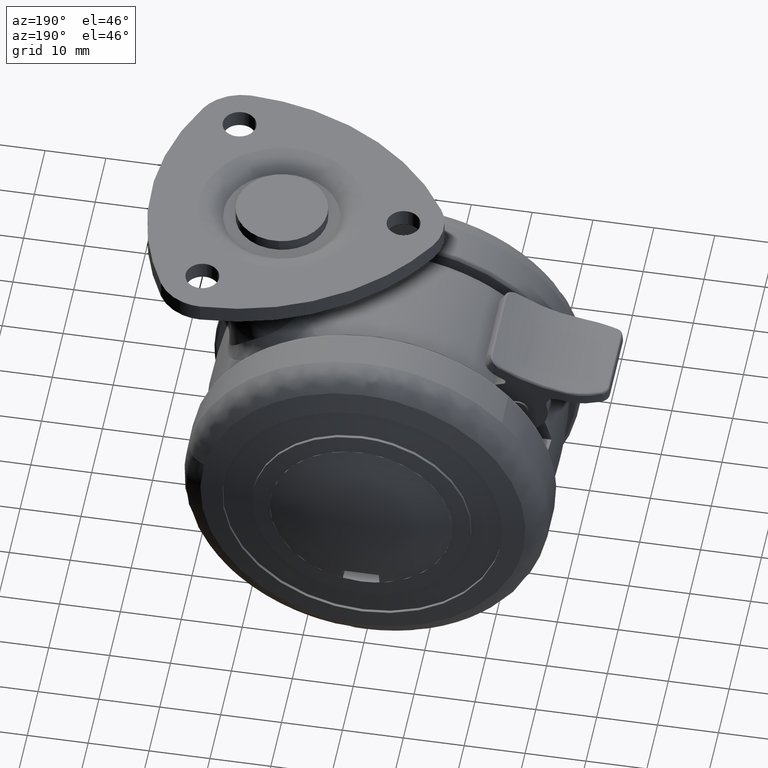
[diagram: clean part render]
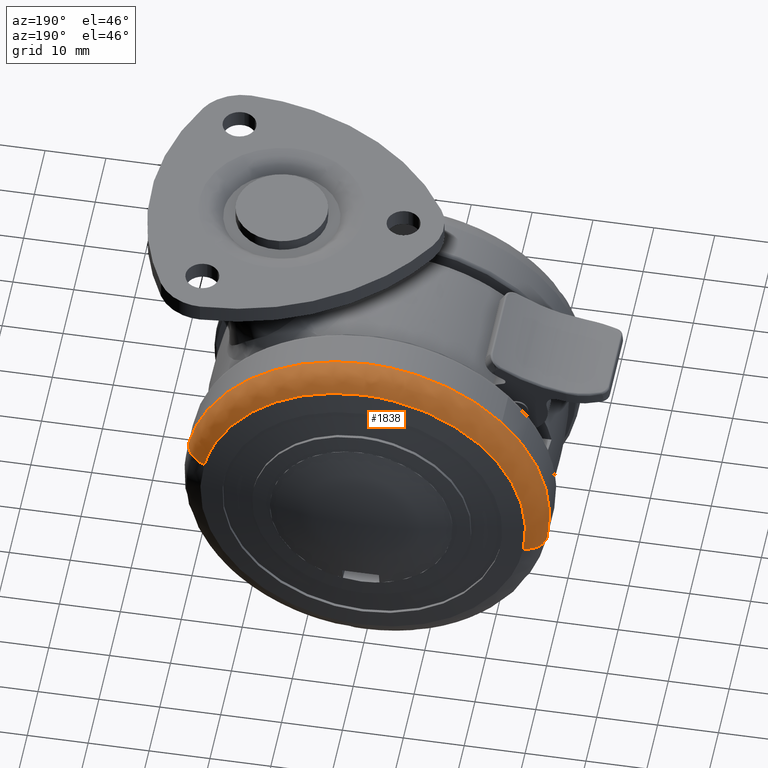
[diagram: same view with one face highlighted and labeled with its STEP entity id]
A machine part, auxiliary view. The second image highlights one B-rep face of the part: STEP entity #1838.
In plain terms, the highlighted face is a freeform B-spline surface patch.
Its self-contained STEP definition (entity closure, byte-faithful):
#794=CARTESIAN_POINT('',(29.273079754005469,16.918165000346921,6.564053756302946));
#795=VERTEX_POINT('',#794);
#813=CARTESIAN_POINT('',(0.0,16.918165000004851,30.000000000000011));
#814=VERTEX_POINT('',#813);
#815=CARTESIAN_POINT('',(0.0,16.918165000004851,30.000000000000011));
#816=CARTESIAN_POINT('',(24.017916571073211,16.918165000004851,30.000000000000004));
#817=CARTESIAN_POINT('',(29.273079754005469,16.918165000346914,6.564053756302946));
#825=(BOUNDED_CURVE()B_SPLINE_CURVE(2,(#815,#816,#817),.UNSPECIFIED.,.F.,.U.)B_SPLINE_CURVE_WITH_KNOTS((3,3),(0.0,0.212563823276733),.UNSPECIFIED.)CURVE()GEOMETRIC_REPRESENTATION_ITEM()RATIONAL_B_SPLINE_CURVE((1.0,0.750965990388735,0.925416950448711))REPRESENTATION_ITEM(''));
#826=EDGE_CURVE('',#814,#795,#825,.T.);
#828=CARTESIAN_POINT('',(-22.118320296662549,16.918165000004858,20.267706018546981));
#829=VERTEX_POINT('',#828);
#830=CARTESIAN_POINT('',(-22.118320296662549,16.918165000004862,20.267706018546978));
#831=CARTESIAN_POINT('',(-13.200316266607871,16.918165000004844,30.000000000000011));
#832=CARTESIAN_POINT('',(0.0,16.918165000004851,30.000000000000011));
#840=(BOUNDED_CURVE()B_SPLINE_CURVE(2,(#830,#831,#832),.UNSPECIFIED.,.F.,.U.)B_SPLINE_CURVE_WITH_KNOTS((3,3),(0.868415206218575,1.0),.UNSPECIFIED.)CURVE()GEOMETRIC_REPRESENTATION_ITEM()RATIONAL_B_SPLINE_CURVE((0.853959781191652,0.845838824809816,1.0))REPRESENTATION_ITEM(''));
#841=EDGE_CURVE('',#829,#814,#840,.T.);
#985=CARTESIAN_POINT('',(-29.600578326231581,16.918165000345059,-4.879114955873533));
#986=VERTEX_POINT('',#985);
#987=CARTESIAN_POINT('',(-29.600578326231574,16.918165000345066,-4.879114955873533));
#988=CARTESIAN_POINT('',(-29.999999999999996,16.918165000004851,-2.455906516138719));
#989=CARTESIAN_POINT('',(-30.0,16.918165000004851,6.215428E-015));
#990=CARTESIAN_POINT('',(-30.000000000000007,16.918165000004844,11.666361627804386));
#991=CARTESIAN_POINT('',(-22.118320296662549,16.918165000004862,20.267706018546978));
#999=(BOUNDED_CURVE()B_SPLINE_CURVE(2,(#987,#988,#989,#990,#991),.UNSPECIFIED.,.F.,.U.)B_SPLINE_CURVE_WITH_KNOTS((3,2,3),(0.722006108799185,0.750000000000000,0.868415206218576),.UNSPECIFIED.)CURVE()GEOMETRIC_REPRESENTATION_ITEM()RATIONAL_B_SPLINE_CURVE((0.941751131923255,0.967203116396318,1.0,0.861267956376730,0.853959781191652))REPRESENTATION_ITEM(''));
#1000=EDGE_CURVE('',#986,#829,#999,.T.);
#1750=CARTESIAN_POINT('',(25.820638296203537,20.891415125268129,5.789894989584138));
#1751=CARTESIAN_POINT('',(20.352931046125480,20.891415125268121,30.173703585037668));
#1752=CARTESIAN_POINT('',(-4.303676399584784,20.891415125268121,26.109511972869988));
#1753=CARTESIAN_POINT('',(-30.413188372454762,20.891415125268121,21.805835573285204));
#1754=CARTESIAN_POINT('',(-26.109511972869988,20.891415125268132,-4.303676399584751));
#1755=CARTESIAN_POINT('',(29.499359611795217,20.453205016049345,6.614793656645838));
#1756=CARTESIAN_POINT('',(23.252656467907894,20.453205016049345,34.472615380914696));
#1757=CARTESIAN_POINT('',(-4.916830339659505,20.453205016049353,29.829389736248729));
#1758=CARTESIAN_POINT('',(-34.746220075908234,20.453205016049342,24.912559396589238));
#1759=CARTESIAN_POINT('',(-29.829389736248729,20.453205016049353,-4.916830339659467));
#1760=CARTESIAN_POINT('',(29.265275459664991,16.665339410077557,6.562303759068089));
#1761=CARTESIAN_POINT('',(23.068141331115260,16.665339410077554,34.199067309046512));
#1762=CARTESIAN_POINT('',(-4.877814168584143,16.665339410077546,29.592686719747309));
#1763=CARTESIAN_POINT('',(-34.470500888331458,16.665339410077536,24.714872551163161));
#1764=CARTESIAN_POINT('',(-29.592686719747309,16.665339410077557,-4.877814168584108));
#1772=(BOUNDED_SURFACE()B_SPLINE_SURFACE(2,2,((#1750,#1755,#1760),(#1751,#1756,#1761),(#1752,#1757,#1762),(#1753,#1758,#1763),(#1754,#1759,#1764)),.UNSPECIFIED.,.F.,.F.,.U.)B_SPLINE_SURFACE_WITH_KNOTS((3,2,3),(3,3),(0.0,47.704680777101792,97.397056586582806),(0.0,6.382859761475611),.UNSPECIFIED.)GEOMETRIC_REPRESENTATION_ITEM()RATIONAL_B_SPLINE_SURFACE(((0.896685774421636,0.650859408926916,0.897771728868873),(0.659390377501734,0.478618534602815,0.660188949234820),(0.917320156762497,0.665836876259446,0.918431101010965),(0.648643303365869,0.470817770367122,0.649428859577481),(0.917320156762497,0.665836876259446,0.918431101010965)))REPRESENTATION_ITEM('')SURFACE());
#1773=ORIENTED_EDGE('',*,*,#826,.T.);
#1774=CARTESIAN_POINT('',(26.065071559120351,20.854227348020441,5.844705521983595));
#1775=VERTEX_POINT('',#1774);
#1776=CARTESIAN_POINT('',(26.065071559120341,20.854227348020437,5.844705521983596));
#1777=CARTESIAN_POINT('',(29.273079753451533,20.259240790822744,6.564053756143051));
#1778=CARTESIAN_POINT('',(29.273079754005476,16.918165000346917,6.564053756302946));
#1786=(BOUNDED_CURVE()B_SPLINE_CURVE(2,(#1776,#1777,#1778),.UNSPECIFIED.,.F.,.U.)B_SPLINE_CURVE_WITH_KNOTS((3,3),(-1.705714506235509,-0.290855615064164),.UNSPECIFIED.)CURVE()GEOMETRIC_REPRESENTATION_ITEM()RATIONAL_B_SPLINE_CURVE((0.875374423729128,0.672220056541175,0.876361784525512))REPRESENTATION_ITEM(''));
#1787=EDGE_CURVE('',#1775,#795,#1786,.T.);
#1788=ORIENTED_EDGE('',*,*,#1787,.F.);
#1789=CARTESIAN_POINT('',(0.0,20.854227333449700,26.712329319606411));
#1790=VERTEX_POINT('',#1789);
#1791=CARTESIAN_POINT('',(0.0,20.854227333449700,26.712329319606411));
#1792=CARTESIAN_POINT('',(21.385816566820569,20.854227333449693,26.712329319606411));
#1793=CARTESIAN_POINT('',(26.065071559120348,20.854227348020441,5.844705521983596));
#1801=(BOUNDED_CURVE()B_SPLINE_CURVE(2,(#1791,#1792,#1793),.UNSPECIFIED.,.F.,.U.)B_SPLINE_CURVE_WITH_KNOTS((3,3),(0.0,0.212563823273568),.UNSPECIFIED.)CURVE()GEOMETRIC_REPRESENTATION_ITEM()RATIONAL_B_SPLINE_CURVE((1.0,0.750965990392444,0.925416950443516))REPRESENTATION_ITEM(''));
#1802=EDGE_CURVE('',#1790,#1775,#1801,.T.);
#1803=ORIENTED_EDGE('',*,*,#1802,.F.);
#1804=CARTESIAN_POINT('',(-26.356679879683540,20.854227348631529,-4.344417516797684));
#1805=VERTEX_POINT('',#1804);
#1806=CARTESIAN_POINT('',(-26.356679879683547,20.854227348631522,-4.344417516797684));
#1807=CARTESIAN_POINT('',(-26.712329319606397,20.854227333449703,-2.186766121231665));
#1808=CARTESIAN_POINT('',(-26.712329319606400,20.854227333449700,7.661466E-015));
#1809=CARTESIAN_POINT('',(-26.712329319606397,20.854227333449693,26.712329319606397));
#1810=CARTESIAN_POINT('',(0.0,20.854227333449700,26.712329319606411));
#1818=(BOUNDED_CURVE()B_SPLINE_CURVE(2,(#1806,#1807,#1808,#1809,#1810),.UNSPECIFIED.,.F.,.U.)B_SPLINE_CURVE_WITH_KNOTS((3,2,3),(0.722006108799314,0.750000000000000,1.0),.UNSPECIFIED.)CURVE()GEOMETRIC_REPRESENTATION_ITEM()RATIONAL_B_SPLINE_CURVE((0.941751131923491,0.967203116396471,1.0,0.707106781186548,1.0))REPRESENTATION_ITEM(''));
#1819=EDGE_CURVE('',#1805,#1790,#1818,.T.);
#1820=ORIENTED_EDGE('',*,*,#1819,.F.);
#1821=CARTESIAN_POINT('',(-26.356679879683544,20.854227348631529,-4.344417516797684));
#1822=CARTESIAN_POINT('',(-29.600578325671261,20.259240796647742,-4.879114955753392));
#1823=CARTESIAN_POINT('',(-29.600578326231581,16.918165000345059,-4.879114955873534));
#1831=(BOUNDED_CURVE()B_SPLINE_CURVE(2,(#1821,#1822,#1823),.UNSPECIFIED.,.F.,.U.)B_SPLINE_CURVE_WITH_KNOTS((3,3),(-1.705714508127820,-0.290855615063138),.UNSPECIFIED.)CURVE()GEOMETRIC_REPRESENTATION_ITEM()RATIONAL_B_SPLINE_CURVE((0.895518393405438,0.687689071227196,0.896528474626907))REPRESENTATION_ITEM(''));
#1832=EDGE_CURVE('',#1805,#986,#1831,.T.);
#1833=ORIENTED_EDGE('',*,*,#1832,.T.);
#1834=ORIENTED_EDGE('',*,*,#1000,.T.);
#1835=ORIENTED_EDGE('',*,*,#841,.T.);
#1836=EDGE_LOOP('',(#1773,#1788,#1803,#1820,#1833,#1834,#1835));
#1837=FACE_OUTER_BOUND('',#1836,.T.);
#1838=ADVANCED_FACE('',(#1837),#1772,.T.);